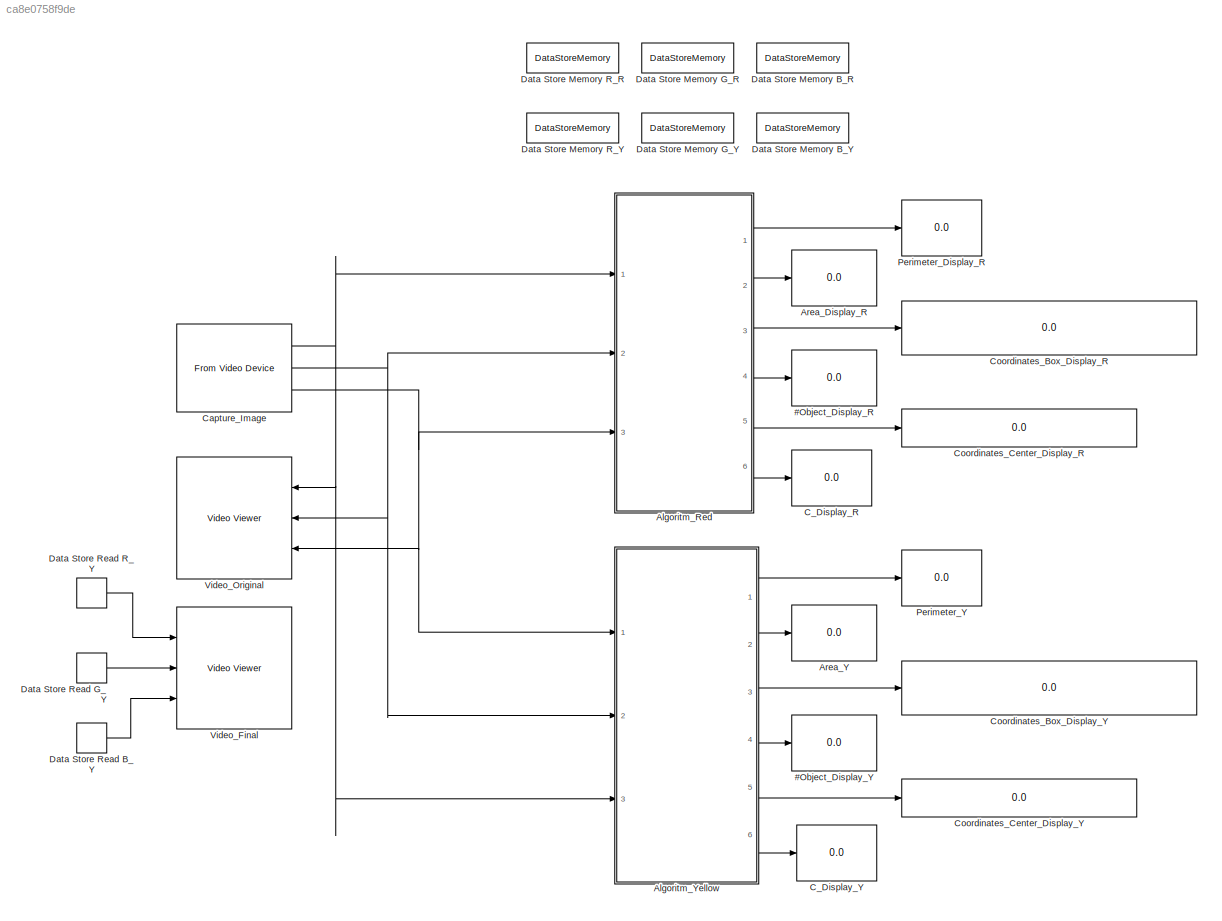
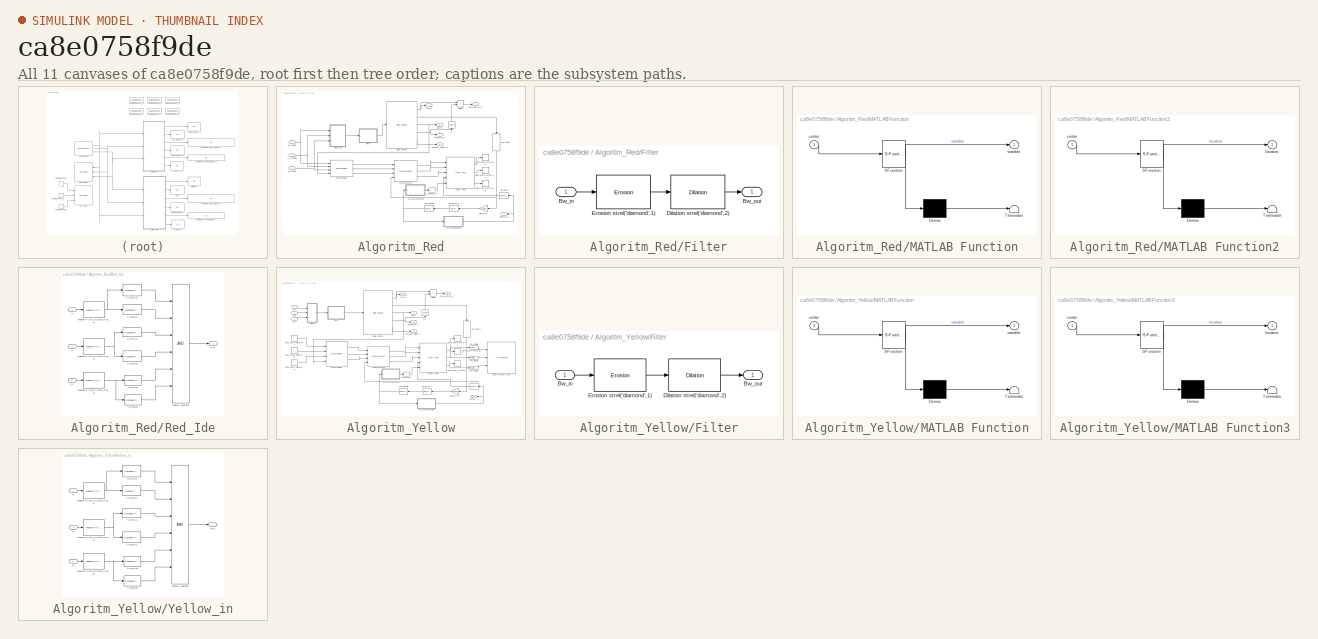
[diagram: thumbnail index - all 11 canvases of the model, root first then tree order]
MODEL slx_ca8e0758f9de
KIND model
CONFIG AbsTol = auto
CONFIG FixedStep = auto
CONFIG MaxStep = auto
CONFIG MinStep = auto
CONFIG RelTol = 1e-3
CONFIG SampleTimeConstraint = Unconstrained
CONFIG Solver = ode45
CONFIG SolverMode = SingleTasking
CONFIG SolverName = ode45
CONFIG StartTime = 0.0
CONFIG StopTime = inf
BLOCK [Display] #Object_Display_R
  Decimation = 1
  Ports = [1]
BLOCK [Display] #Object_Display_Y
  Decimation = 1
  Ports = [1]
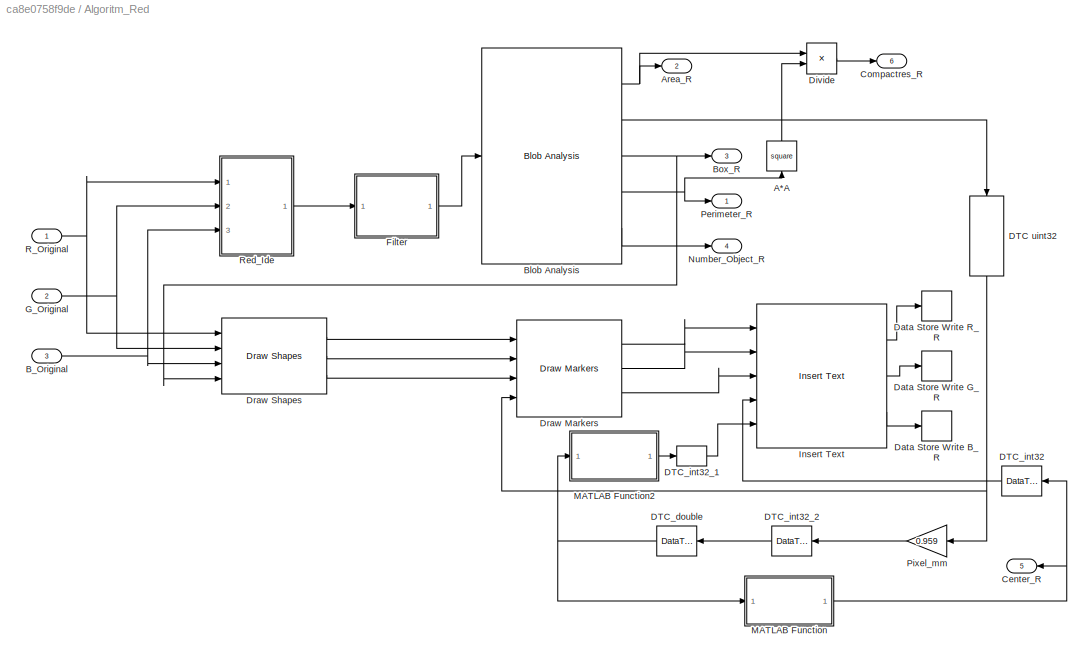
BLOCK [SubSystem] Algoritm_Red
  Ports = [3, 6]
  RequestExecContextInheritance = off
  Variant = off
BLOCK [Math] Algoritm_Red/A*A
  Operator = square
  Ports = [1, 1]
BLOCK [Outport] Algoritm_Red/Area_R
  IconDisplay = Port number
  Port = 2
BLOCK [Inport] Algoritm_Red/B_Original
  IconDisplay = Port number
  Port = 3
BLOCK [Reference] Algoritm_Red/Blob Analysis  REF=visionstatistics/Blob Analysis
  LockScale = off
  Ports = [1, 5]
  SourceBlock = visionstatistics/Blob Analysis
  SourceType = Blob Analysis
  Tag = vipblks_row_conv
  accumFracLength = 0
  accumMode = Binary point scaling
  accumWordLength = 32
  angle = off
  area = on
  bBox = on
  centroid = on
  conn = 8
  eccentricity = off
  equivDiameterSq = off
  excludeBorderBlob = on
  extent = off
  fillValues = -1
  firstCoeffFracLength = 14
  firstCoeffMode = Binary point scaling
  firstCoeffWordLength = 16
  isCount = on
  isFill = on
  isLabel = off
  isOutVarDim = off
  majorAxis = off
  maxArea = intmax('uint32')
  maxBlobs = 2
  memoryFracLength = 16
  memoryMode = Same as product output
  memoryWordLength = 32
  minArea = 700
  minorAxis = off
  outDT = double
  outputFracLength = 16
  outputMode = Binary point scaling
  outputWordLength = 32
  overflowMode = off
  perimeter = on
  prodOutputFracLength = 16
  prodOutputMode = Binary point scaling
  prodOutputWordLength = 32
  roundingMode = Floor
  secondCoeffFracLength = 16
  secondCoeffMode = Binary point scaling
  secondCoeffWordLength = 32
  useMaxArea = off
  useMinArea = on
  warnIfNumBlobsExceeded = on
BLOCK [Outport] Algoritm_Red/Box_R
  IconDisplay = Port number
  Port = 3
BLOCK [Outport] Algoritm_Red/Center_R
  IconDisplay = Port number
  Port = 5
BLOCK [Outport] Algoritm_Red/Compactres_R
  IconDisplay = Port number
  Port = 6
BLOCK [DataTypeConversion] Algoritm_Red/DTC uint32
  OutDataTypeStr = uint32
  RndMeth = Floor
  SaturateOnIntegerOverflow = off
BLOCK [DataTypeConversion] Algoritm_Red/DTC_double
  OutDataTypeStr = double
  RndMeth = Floor
  SaturateOnIntegerOverflow = off
BLOCK [DataTypeConversion] Algoritm_Red/DTC_int32
  OutDataTypeStr = int32
  RndMeth = Floor
  SaturateOnIntegerOverflow = off
BLOCK [DataTypeConversion] Algoritm_Red/DTC_int32_1
  OutDataTypeStr = int32
  RndMeth = Floor
  SaturateOnIntegerOverflow = off
BLOCK [DataTypeConversion] Algoritm_Red/DTC_int32_2
  OutDataTypeStr = int32
  RndMeth = Floor
  SaturateOnIntegerOverflow = off
BLOCK [DataStoreWrite] Algoritm_Red/Data Store Write B_R
  DataStoreName = B_R
  Ports = [1]
BLOCK [DataStoreWrite] Algoritm_Red/Data Store Write G_R
  DataStoreName = G_R
  Ports = [1]
BLOCK [DataStoreWrite] Algoritm_Red/Data Store Write R_R
  DataStoreName = R_R
  Ports = [1]
BLOCK [Product] Algoritm_Red/Divide
  InputSameDT = off
  Inputs = /*
  OutDataTypeStr = Inherit: Inherit via internal rule
  Ports = [2, 1]
  RndMeth = Floor
  SaturateOnIntegerOverflow = off
BLOCK [Reference] Algoritm_Red/Draw Markers  REF=visiontextngfix/Draw Markers
  LockScale = off
  Ports = [4, 3]
  SourceBlock = visiontextngfix/Draw Markers
  SourceType = Draw Markers
  accumFracLength = 14
  accumMode = Same as product output
  accumWordLength = 32
  antialiasing = off
  color = [0 0 1]
  display = User-specified value
  fill = off
  fillClrSource = Specify via dialog
  imagePorts = Separate color signals
  inType = Obsolete
  intensity = 200
  memoryFracLength = 15
  memoryMode = Specify word length
  memoryWordLength = 16
  opacity = 0.6
  overflowMode = off
  prodOutputFracLength = 14
  prodOutputMode = Binary point scaling
  prodOutputWordLength = 32
  roundingMode = Floor
  shape = Plus
  size = 8
  viewport = Entire image
BLOCK [Reference] Algoritm_Red/Draw Shapes  REF=visiontextngfix/Draw Shapes
  LockScale = off
  Ports = [4, 3]
  SourceBlock = visiontextngfix/Draw Shapes
  SourceType = Draw Shapes
  accumFracLength = 14
  accumMode = Same as product output
  accumWordLength = 32
  antialiasing = off
  color = [0 0 255]
  display = User-specified value
  fill = off
  fillClrSource = Specify via dialog
  imagePorts = Separate color signals
  inType = Obsolete
  intensity = 200
  lineWidth = 1
  memoryFracLength = 14
  memoryMode = Specify word length
  memoryWordLength = 16
  opacity = 0.5
  overflowMode = off
  prodOutputFracLength = 14
  prodOutputMode = Binary point scaling
  prodOutputWordLength = 32
  roundingMode = Floor
  shape = Rectangles
  viewport = Entire image
BLOCK [SubSystem] Algoritm_Red/Filter
  Ports = [1, 1]
  RequestExecContextInheritance = off
  Variant = off
BLOCK [Inport] Algoritm_Red/Filter/Bw_in
  IconDisplay = Port number
BLOCK [Outport] Algoritm_Red/Filter/Bw_out
  IconDisplay = Port number
BLOCK [Reference] Algoritm_Red/Filter/Dilation strel('diamond',2)  REF=visionmorphops/Dilation
  Ports = [1, 1]
  SourceBlock = visionmorphops/Dilation
  SourceType = Dilation
  nhoodsrc = Specify via dialog
  strel = strel('diamond',2)
BLOCK [Reference] Algoritm_Red/Filter/Erosion strel('diamond',1)  REF=visionmorphops/Erosion
  Ports = [1, 1]
  SourceBlock = visionmorphops/Erosion
  SourceType = Erosion
  nhoodsrc = Specify via dialog
  strel = strel('diamond',1)
BLOCK [Inport] Algoritm_Red/G_Original
  IconDisplay = Port number
  Port = 2
BLOCK [Reference] Algoritm_Red/Insert Text  REF=visiontextngfix/Insert Text
  Ports = [5, 3]
  SourceBlock = visiontextngfix/Insert Text
  SourceType = Insert Text
  antiAliased = on
  blockFontSize = 20
  dummyVar1 = 0
  dummyVar2 = 0
  dummyVar3 = 0
  dummyVar4 = 0
  fontFace = Calibri
  getTextColorFrom = Specify via dialog
  getTextIntensityFrom = Specify via dialog
  getTextLocFrom = Input port
  getTextOpacityFrom = Specify via dialog
  imagePorts = Separate color signals
  inputType = Obsolete
  isInputTransposed = off
  textColor = [0 0 0]
  textIntensity = 0
  textLoc = [1 1]
  textOpacity = 1
  theText = '[%i;%i]'
BLOCK [SubSystem] Algoritm_Red/MATLAB Function
  ErrorFcn = Stateflow.Translate.translate
  PermitHierarchicalResolution = ParametersOnly
  Ports = [1, 1]
  RequestExecContextInheritance = off
  SFBlockType = MATLAB Function
  TreatAsAtomicUnit = on
  Variant = off
BLOCK [Demux] Algoritm_Red/MATLAB Function/ Demux 
  Outputs = 1
  Ports = [1, 1]
BLOCK [S-Function] Algoritm_Red/MATLAB Function/ SFunction 
  EnableBusSupport = on
  FunctionName = sf_sfun
  PortCounts = [1 2]
  Ports = [1, 2]
  SFunctionDeploymentMode = off
  Tag = Stateflow S-Function Vision_2015A 1
BLOCK [Terminator] Algoritm_Red/MATLAB Function/ Terminator 
BLOCK [Inport] Algoritm_Red/MATLAB Function/center
  IconDisplay = Port number
BLOCK [Outport] Algoritm_Red/MATLAB Function/variable
  IconDisplay = Port number
BLOCK [SubSystem] Algoritm_Red/MATLAB Function2
  ErrorFcn = Stateflow.Translate.translate
  PermitHierarchicalResolution = ParametersOnly
  Ports = [1, 1]
  RequestExecContextInheritance = off
  SFBlockType = MATLAB Function
  TreatAsAtomicUnit = on
  Variant = off
BLOCK [Demux] Algoritm_Red/MATLAB Function2/ Demux 
  Outputs = 1
  Ports = [1, 1]
BLOCK [S-Function] Algoritm_Red/MATLAB Function2/ SFunction 
  EnableBusSupport = on
  FunctionName = sf_sfun
  PortCounts = [1 2]
  Ports = [1, 2]
  SFunctionDeploymentMode = off
  Tag = Stateflow S-Function Vision_2015A 3
BLOCK [Terminator] Algoritm_Red/MATLAB Function2/ Terminator 
BLOCK [Inport] Algoritm_Red/MATLAB Function2/center
  IconDisplay = Port number
BLOCK [Outport] Algoritm_Red/MATLAB Function2/location
  IconDisplay = Port number
BLOCK [Outport] Algoritm_Red/Number_Object_R
  IconDisplay = Port number
  Port = 4
BLOCK [Outport] Algoritm_Red/Perimeter_R 
  IconDisplay = Port number
BLOCK [Gain] Algoritm_Red/Pixel_mm
  Gain = 0.959
  OutDataTypeStr = Inherit: Inherit via internal rule
  ParamDataTypeStr = Inherit: Inherit via internal rule
  SaturateOnIntegerOverflow = off
BLOCK [Inport] Algoritm_Red/R_Original
  IconDisplay = Port number
BLOCK [SubSystem] Algoritm_Red/Red_Ide
  Ports = [3, 1]
  RequestExecContextInheritance = off
  Variant = off
BLOCK [Inport] Algoritm_Red/Red_Ide/B
  IconDisplay = Port number
  Port = 3
BLOCK [Outport] Algoritm_Red/Red_Ide/BW
  IconDisplay = Port number
BLOCK [Inport] Algoritm_Red/Red_Ide/G
  IconDisplay = Port number
  Port = 2
BLOCK [Logic] Algoritm_Red/Red_Ide/Logical Operator
  AllPortsSameDT = off
  Inputs = 6
  OutDataTypeStr = boolean
  Ports = [6, 1]
BLOCK [Reference] Algoritm_Red/Red_Ide/Median Filter_Circular_[5 5]_B  REF=visionanalysis/Median Filter
  LockScale = off
  Ports = [1, 1]
  SourceBlock = visionanalysis/Median Filter
  SourceType = Median Filter
  accumFracLength = 30
  accumMode = Same as input
  accumWordLength = 32
  nghbood = [5 5]
  outSize = Same as input port I
  outputFracLength = 15
  outputMode = Same as input
  outputWordLength = 16
  overflowMode = off
  padSrc = Specify via dialog
  padType = Circular
  padVal = 0
  prodOutputFracLength = 30
  prodOutputMode = Same as input
  prodOutputWordLength = 32
  roundingMode = Floor
BLOCK [Reference] Algoritm_Red/Red_Ide/Median Filter_Circular_[5 5]_G  REF=visionanalysis/Median Filter
  LockScale = off
  Ports = [1, 1]
  SourceBlock = visionanalysis/Median Filter
  SourceType = Median Filter
  accumFracLength = 30
  accumMode = Same as input
  accumWordLength = 32
  nghbood = [5 5]
  outSize = Same as input port I
  outputFracLength = 15
  outputMode = Same as input
  outputWordLength = 16
  overflowMode = off
  padSrc = Specify via dialog
  padType = Circular
  padVal = 0
  prodOutputFracLength = 30
  prodOutputMode = Same as input
  prodOutputWordLength = 32
  roundingMode = Floor
BLOCK [Reference] Algoritm_Red/Red_Ide/Median Filter_Circular_[5 5]_R  REF=visionanalysis/Median Filter
  LockScale = off
  Ports = [1, 1]
  SourceBlock = visionanalysis/Median Filter
  SourceType = Median Filter
  accumFracLength = 30
  accumMode = Same as input
  accumWordLength = 32
  nghbood = [5 5]
  outSize = Same as input port I
  outputFracLength = 15
  outputMode = Same as input
  outputWordLength = 16
  overflowMode = off
  padSrc = Specify via dialog
  padType = Circular
  padVal = 0
  prodOutputFracLength = 30
  prodOutputMode = Same as input
  prodOutputWordLength = 32
  roundingMode = Floor
BLOCK [Inport] Algoritm_Red/Red_Ide/R
  IconDisplay = Port number
BLOCK [Reference] Algoritm_Red/Red_Ide/Th_max_B  REF=simulink/Logic and Bit
Operations/Compare
To Constant
  OutDataTypeStr = boolean
  Ports = [1, 1]
  SourceBlock = simulink/Logic and Bit\nOperations/Compare\nTo Constant
  SourceType = Compare To Constant
  ZeroCross = on
  const = (150)/255
  relop = <=
BLOCK [Reference] Algoritm_Red/Red_Ide/Th_max_G  REF=simulink/Logic and Bit
Operations/Compare
To Constant
  OutDataTypeStr = boolean
  Ports = [1, 1]
  SourceBlock = simulink/Logic and Bit\nOperations/Compare\nTo Constant
  SourceType = Compare To Constant
  ZeroCross = on
  const = (150)/255
  relop = <=
BLOCK [Reference] Algoritm_Red/Red_Ide/Th_max_R   REF=simulink/Logic and Bit
Operations/Compare
To Constant
  OutDataTypeStr = boolean
  Ports = [1, 1]
  SourceBlock = simulink/Logic and Bit\nOperations/Compare\nTo Constant
  SourceType = Compare To Constant
  ZeroCross = on
  const = (225+30)/255
  relop = <=
BLOCK [Reference] Algoritm_Red/Red_Ide/Th_min_B  REF=simulink/Logic and Bit
Operations/Compare
To Constant
  OutDataTypeStr = boolean
  Ports = [1, 1]
  SourceBlock = simulink/Logic and Bit\nOperations/Compare\nTo Constant
  SourceType = Compare To Constant
  ZeroCross = on
  const = (0)/255
  relop = >=
BLOCK [Reference] Algoritm_Red/Red_Ide/Th_min_G  REF=simulink/Logic and Bit
Operations/Compare
To Constant
  OutDataTypeStr = boolean
  Ports = [1, 1]
  SourceBlock = simulink/Logic and Bit\nOperations/Compare\nTo Constant
  SourceType = Compare To Constant
  ZeroCross = on
  const = (0)/255
  relop = >=
BLOCK [Reference] Algoritm_Red/Red_Ide/Th_min_R  REF=simulink/Logic and Bit
Operations/Compare
To Constant
  OutDataTypeStr = boolean
  Ports = [1, 1]
  SourceBlock = simulink/Logic and Bit\nOperations/Compare\nTo Constant
  SourceType = Compare To Constant
  ZeroCross = on
  const = (225-40)/255
  relop = >=
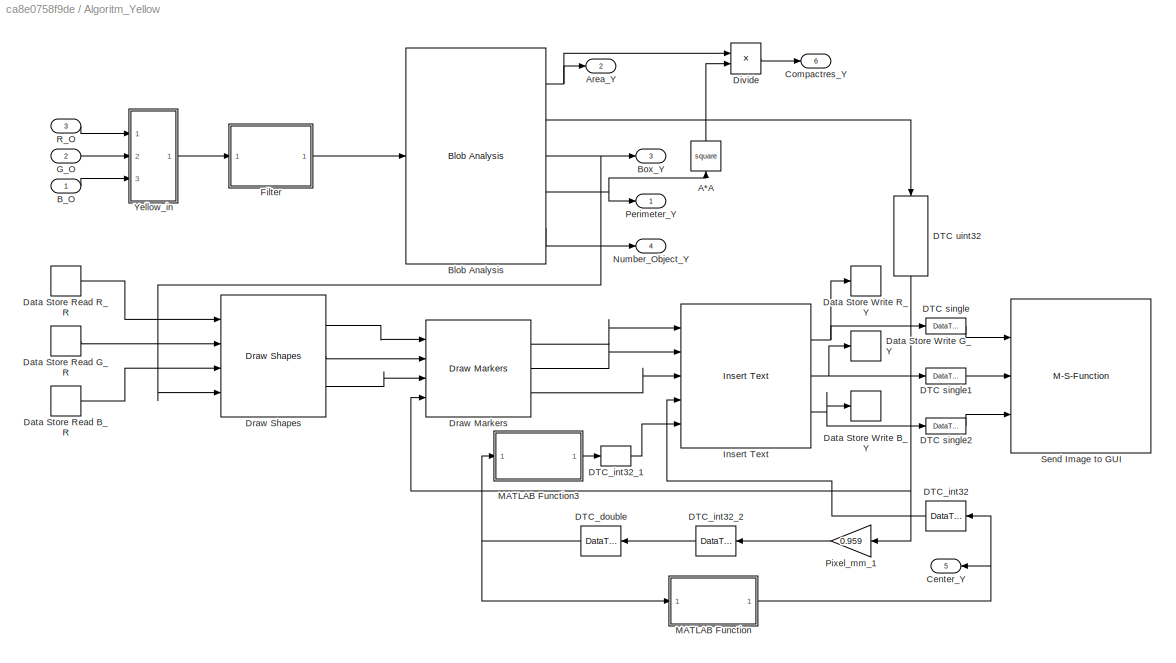
BLOCK [SubSystem] Algoritm_Yellow
  Ports = [3, 6]
  RequestExecContextInheritance = off
  Variant = off
BLOCK [Math] Algoritm_Yellow/A*A
  Operator = square
  Ports = [1, 1]
BLOCK [Outport] Algoritm_Yellow/Area_Y
  IconDisplay = Port number
  Port = 2
BLOCK [Inport] Algoritm_Yellow/B_O
  IconDisplay = Port number
BLOCK [Reference] Algoritm_Yellow/Blob Analysis  REF=visionstatistics/Blob Analysis
  LockScale = off
  Ports = [1, 5]
  SourceBlock = visionstatistics/Blob Analysis
  SourceType = Blob Analysis
  Tag = vipblks_row_conv
  accumFracLength = 0
  accumMode = Binary point scaling
  accumWordLength = 32
  angle = off
  area = on
  bBox = on
  centroid = on
  conn = 8
  eccentricity = off
  equivDiameterSq = off
  excludeBorderBlob = on
  extent = off
  fillValues = -1
  firstCoeffFracLength = 14
  firstCoeffMode = Binary point scaling
  firstCoeffWordLength = 16
  isCount = on
  isFill = on
  isLabel = off
  isOutVarDim = off
  majorAxis = off
  maxArea = intmax('uint32')
  maxBlobs = 2
  memoryFracLength = 16
  memoryMode = Same as product output
  memoryWordLength = 32
  minArea = 700
  minorAxis = off
  outDT = double
  outputFracLength = 16
  outputMode = Binary point scaling
  outputWordLength = 32
  overflowMode = off
  perimeter = on
  prodOutputFracLength = 16
  prodOutputMode = Binary point scaling
  prodOutputWordLength = 32
  roundingMode = Floor
  secondCoeffFracLength = 16
  secondCoeffMode = Binary point scaling
  secondCoeffWordLength = 32
  useMaxArea = off
  useMinArea = on
  warnIfNumBlobsExceeded = on
BLOCK [Outport] Algoritm_Yellow/Box_Y
  IconDisplay = Port number
  Port = 3
BLOCK [Outport] Algoritm_Yellow/Center_Y
  IconDisplay = Port number
  Port = 5
BLOCK [Outport] Algoritm_Yellow/Compactres_Y
  IconDisplay = Port number
  Port = 6
BLOCK [DataTypeConversion] Algoritm_Yellow/DTC single
  OutDataTypeStr = single
  RndMeth = Floor
  SaturateOnIntegerOverflow = off
BLOCK [DataTypeConversion] Algoritm_Yellow/DTC single1
  OutDataTypeStr = single
  RndMeth = Floor
  SaturateOnIntegerOverflow = off
BLOCK [DataTypeConversion] Algoritm_Yellow/DTC single2
  OutDataTypeStr = single
  RndMeth = Floor
  SaturateOnIntegerOverflow = off
BLOCK [DataTypeConversion] Algoritm_Yellow/DTC uint32
  OutDataTypeStr = uint32
  RndMeth = Floor
  SaturateOnIntegerOverflow = off
BLOCK [DataTypeConversion] Algoritm_Yellow/DTC_double
  OutDataTypeStr = double
  RndMeth = Floor
  SaturateOnIntegerOverflow = off
BLOCK [DataTypeConversion] Algoritm_Yellow/DTC_int32
  OutDataTypeStr = int32
  RndMeth = Floor
  SaturateOnIntegerOverflow = off
BLOCK [DataTypeConversion] Algoritm_Yellow/DTC_int32_1
  OutDataTypeStr = int32
  RndMeth = Floor
  SaturateOnIntegerOverflow = off
BLOCK [DataTypeConversion] Algoritm_Yellow/DTC_int32_2
  OutDataTypeStr = int32
  RndMeth = Floor
  SaturateOnIntegerOverflow = off
BLOCK [DataStoreRead] Algoritm_Yellow/Data Store Read B_R 
  DataStoreName = B_R
  Ports = [0, 1]
BLOCK [DataStoreRead] Algoritm_Yellow/Data Store Read G_R
  DataStoreName = G_R
  Ports = [0, 1]
BLOCK [DataStoreRead] Algoritm_Yellow/Data Store Read R_R
  DataStoreName = R_R
  Ports = [0, 1]
BLOCK [DataStoreWrite] Algoritm_Yellow/Data Store Write B_Y
  DataStoreName = B_Y
  Ports = [1]
BLOCK [DataStoreWrite] Algoritm_Yellow/Data Store Write G_Y
  DataStoreName = G_Y
  Ports = [1]
BLOCK [DataStoreWrite] Algoritm_Yellow/Data Store Write R_Y
  DataStoreName = R_Y
  Ports = [1]
BLOCK [Product] Algoritm_Yellow/Divide
  InputSameDT = off
  Inputs = /*
  OutDataTypeStr = Inherit: Inherit via internal rule
  Ports = [2, 1]
  RndMeth = Floor
  SaturateOnIntegerOverflow = off
BLOCK [Reference] Algoritm_Yellow/Draw Markers  REF=visiontextngfix/Draw Markers
  LockScale = off
  Ports = [4, 3]
  SourceBlock = visiontextngfix/Draw Markers
  SourceType = Draw Markers
  accumFracLength = 14
  accumMode = Same as product output
  accumWordLength = 32
  antialiasing = off
  color = [0 0 1]
  display = User-specified value
  fill = off
  fillClrSource = Specify via dialog
  imagePorts = Separate color signals
  inType = Obsolete
  intensity = 200
  memoryFracLength = 15
  memoryMode = Specify word length
  memoryWordLength = 16
  opacity = 0.6
  overflowMode = off
  prodOutputFracLength = 14
  prodOutputMode = Binary point scaling
  prodOutputWordLength = 32
  roundingMode = Floor
  shape = Plus
  size = 8
  viewport = Entire image
BLOCK [Reference] Algoritm_Yellow/Draw Shapes  REF=visiontextngfix/Draw Shapes
  LockScale = off
  Ports = [4, 3]
  SourceBlock = visiontextngfix/Draw Shapes
  SourceType = Draw Shapes
  accumFracLength = 14
  accumMode = Same as product output
  accumWordLength = 32
  antialiasing = off
  color = [0 0 255]
  display = User-specified value
  fill = off
  fillClrSource = Specify via dialog
  imagePorts = Separate color signals
  inType = Obsolete
  intensity = 200
  lineWidth = 1
  memoryFracLength = 14
  memoryMode = Specify word length
  memoryWordLength = 16
  opacity = 0.5
  overflowMode = off
  prodOutputFracLength = 14
  prodOutputMode = Binary point scaling
  prodOutputWordLength = 32
  roundingMode = Floor
  shape = Rectangles
  viewport = Entire image
BLOCK [SubSystem] Algoritm_Yellow/Filter
  Ports = [1, 1]
  RequestExecContextInheritance = off
  Variant = off
BLOCK [Inport] Algoritm_Yellow/Filter/Bw_in
  IconDisplay = Port number
BLOCK [Outport] Algoritm_Yellow/Filter/Bw_out
  IconDisplay = Port number
BLOCK [Reference] Algoritm_Yellow/Filter/Dilation strel('diamond',2)  REF=visionmorphops/Dilation
  Ports = [1, 1]
  SourceBlock = visionmorphops/Dilation
  SourceType = Dilation
  nhoodsrc = Specify via dialog
  strel = strel('diamond',2)
BLOCK [Reference] Algoritm_Yellow/Filter/Erosion strel('diamond',1)  REF=visionmorphops/Erosion
  Ports = [1, 1]
  SourceBlock = visionmorphops/Erosion
  SourceType = Erosion
  nhoodsrc = Specify via dialog
  strel = strel('diamond',1)
BLOCK [Inport] Algoritm_Yellow/G_O
  IconDisplay = Port number
  Port = 2
BLOCK [Reference] Algoritm_Yellow/Insert Text  REF=visiontextngfix/Insert Text
  Ports = [5, 3]
  SourceBlock = visiontextngfix/Insert Text
  SourceType = Insert Text
  antiAliased = on
  blockFontSize = 20
  dummyVar1 = 0
  dummyVar2 = 0
  dummyVar3 = 0
  dummyVar4 = 0
  fontFace = Calibri
  getTextColorFrom = Specify via dialog
  getTextIntensityFrom = Specify via dialog
  getTextLocFrom = Input port
  getTextOpacityFrom = Specify via dialog
  imagePorts = Separate color signals
  inputType = Obsolete
  isInputTransposed = off
  textColor = [0 0 0]
  textIntensity = 0
  textLoc = [1 1]
  textOpacity = 1
  theText = '[%i;%i]'
BLOCK [SubSystem] Algoritm_Yellow/MATLAB Function
  ErrorFcn = Stateflow.Translate.translate
  PermitHierarchicalResolution = ParametersOnly
  Ports = [1, 1]
  RequestExecContextInheritance = off
  SFBlockType = MATLAB Function
  TreatAsAtomicUnit = on
  Variant = off
BLOCK [Demux] Algoritm_Yellow/MATLAB Function/ Demux 
  Outputs = 1
  Ports = [1, 1]
BLOCK [S-Function] Algoritm_Yellow/MATLAB Function/ SFunction 
  EnableBusSupport = on
  FunctionName = sf_sfun
  PortCounts = [1 2]
  Ports = [1, 2]
  SFunctionDeploymentMode = off
  Tag = Stateflow S-Function Vision_2015A 5
BLOCK [Terminator] Algoritm_Yellow/MATLAB Function/ Terminator 
BLOCK [Inport] Algoritm_Yellow/MATLAB Function/center
  IconDisplay = Port number
BLOCK [Outport] Algoritm_Yellow/MATLAB Function/variable
  IconDisplay = Port number
BLOCK [SubSystem] Algoritm_Yellow/MATLAB Function3
  ErrorFcn = Stateflow.Translate.translate
  PermitHierarchicalResolution = ParametersOnly
  Ports = [1, 1]
  RequestExecContextInheritance = off
  SFBlockType = MATLAB Function
  TreatAsAtomicUnit = on
  Variant = off
BLOCK [Demux] Algoritm_Yellow/MATLAB Function3/ Demux 
  Outputs = 1
  Ports = [1, 1]
BLOCK [S-Function] Algoritm_Yellow/MATLAB Function3/ SFunction 
  EnableBusSupport = on
  FunctionName = sf_sfun
  PortCounts = [1 2]
  Ports = [1, 2]
  SFunctionDeploymentMode = off
  Tag = Stateflow S-Function Vision_2015A 6
BLOCK [Terminator] Algoritm_Yellow/MATLAB Function3/ Terminator 
BLOCK [Inport] Algoritm_Yellow/MATLAB Function3/center
  IconDisplay = Port number
BLOCK [Outport] Algoritm_Yellow/MATLAB Function3/location
  IconDisplay = Port number
BLOCK [Outport] Algoritm_Yellow/Number_Object_Y
  IconDisplay = Port number
  Port = 4
BLOCK [Outport] Algoritm_Yellow/Perimeter_Y 
  IconDisplay = Port number
BLOCK [Gain] Algoritm_Yellow/Pixel_mm_1
  Gain = 0.959
  OutDataTypeStr = Inherit: Inherit via internal rule
  ParamDataTypeStr = Inherit: Inherit via internal rule
  SaturateOnIntegerOverflow = off
BLOCK [Inport] Algoritm_Yellow/R_O
  IconDisplay = Port number
  Port = 3
BLOCK [M-S-Function] Algoritm_Yellow/Send Image to GUI
  FunctionName = act_ima_auto
  Ports = [3]
BLOCK [SubSystem] Algoritm_Yellow/Yellow_in
  Ports = [3, 1]
  RequestExecContextInheritance = off
  Variant = off
BLOCK [Inport] Algoritm_Yellow/Yellow_in/B
  IconDisplay = Port number
  Port = 3
BLOCK [Outport] Algoritm_Yellow/Yellow_in/BW
  IconDisplay = Port number
BLOCK [Inport] Algoritm_Yellow/Yellow_in/G
  IconDisplay = Port number
  Port = 2
BLOCK [Logic] Algoritm_Yellow/Yellow_in/Logical Operator
  AllPortsSameDT = off
  Inputs = 6
  OutDataTypeStr = boolean
  Ports = [6, 1]
BLOCK [Reference] Algoritm_Yellow/Yellow_in/Median Filter_Circular_[5 5]_B  REF=visionanalysis/Median Filter
  LockScale = off
  Ports = [1, 1]
  SourceBlock = visionanalysis/Median Filter
  SourceType = Median Filter
  accumFracLength = 30
  accumMode = Same as input
  accumWordLength = 32
  nghbood = [5 5]
  outSize = Same as input port I
  outputFracLength = 15
  outputMode = Same as input
  outputWordLength = 16
  overflowMode = off
  padSrc = Specify via dialog
  padType = Circular
  padVal = 0
  prodOutputFracLength = 30
  prodOutputMode = Same as input
  prodOutputWordLength = 32
  roundingMode = Floor
BLOCK [Reference] Algoritm_Yellow/Yellow_in/Median Filter_Circular_[5 5]_G  REF=visionanalysis/Median Filter
  LockScale = off
  Ports = [1, 1]
  SourceBlock = visionanalysis/Median Filter
  SourceType = Median Filter
  accumFracLength = 30
  accumMode = Same as input
  accumWordLength = 32
  nghbood = [5 5]
  outSize = Same as input port I
  outputFracLength = 15
  outputMode = Same as input
  outputWordLength = 16
  overflowMode = off
  padSrc = Specify via dialog
  padType = Circular
  padVal = 0
  prodOutputFracLength = 30
  prodOutputMode = Same as input
  prodOutputWordLength = 32
  roundingMode = Floor
BLOCK [Reference] Algoritm_Yellow/Yellow_in/Median Filter_Circular_[5 5]_R  REF=visionanalysis/Median Filter
  LockScale = off
  Ports = [1, 1]
  SourceBlock = visionanalysis/Median Filter
  SourceType = Median Filter
  accumFracLength = 30
  accumMode = Same as input
  accumWordLength = 32
  nghbood = [5 5]
  outSize = Same as input port I
  outputFracLength = 15
  outputMode = Same as input
  outputWordLength = 16
  overflowMode = off
  padSrc = Specify via dialog
  padType = Circular
  padVal = 0
  prodOutputFracLength = 30
  prodOutputMode = Same as input
  prodOutputWordLength = 32
  roundingMode = Floor
BLOCK [Inport] Algoritm_Yellow/Yellow_in/R
  IconDisplay = Port number
BLOCK [Reference] Algoritm_Yellow/Yellow_in/Th_max_B  REF=simulink/Logic and Bit
Operations/Compare
To Constant
  OutDataTypeStr = boolean
  Ports = [1, 1]
  SourceBlock = simulink/Logic and Bit\nOperations/Compare\nTo Constant
  SourceType = Compare To Constant
  ZeroCross = on
  const = (200)/255
  relop = <=
BLOCK [Reference] Algoritm_Yellow/Yellow_in/Th_max_G  REF=simulink/Logic and Bit
Operations/Compare
To Constant
  OutDataTypeStr = boolean
  Ports = [1, 1]
  SourceBlock = simulink/Logic and Bit\nOperations/Compare\nTo Constant
  SourceType = Compare To Constant
  ZeroCross = on
  const = (225+30)/255
  relop = <=
BLOCK [Reference] Algoritm_Yellow/Yellow_in/Th_max_R  REF=simulink/Logic and Bit
Operations/Compare
To Constant
  OutDataTypeStr = boolean
  Ports = [1, 1]
  SourceBlock = simulink/Logic and Bit\nOperations/Compare\nTo Constant
  SourceType = Compare To Constant
  ZeroCross = on
  const = (225+30)/255
  relop = <=
BLOCK [Reference] Algoritm_Yellow/Yellow_in/Th_min_B  REF=simulink/Logic and Bit
Operations/Compare
To Constant
  OutDataTypeStr = boolean
  Ports = [1, 1]
  SourceBlock = simulink/Logic and Bit\nOperations/Compare\nTo Constant
  SourceType = Compare To Constant
  ZeroCross = on
  const = (0)/255
  relop = >=
BLOCK [Reference] Algoritm_Yellow/Yellow_in/Th_min_G   REF=simulink/Logic and Bit
Operations/Compare
To Constant
  OutDataTypeStr = boolean
  Ports = [1, 1]
  SourceBlock = simulink/Logic and Bit\nOperations/Compare\nTo Constant
  SourceType = Compare To Constant
  ZeroCross = on
  const = (200)/255
  relop = >=
BLOCK [Reference] Algoritm_Yellow/Yellow_in/Th_min_R   REF=simulink/Logic and Bit
Operations/Compare
To Constant
  OutDataTypeStr = boolean
  Ports = [1, 1]
  SourceBlock = simulink/Logic and Bit\nOperations/Compare\nTo Constant
  SourceType = Compare To Constant
  ZeroCross = on
  const = (200)/255
  relop = >=
BLOCK [Display] Area_Display_R
  Decimation = 1
  Ports = [1]
BLOCK [Display] Area_Y
  Decimation = 1
  Ports = [1]
BLOCK [Display] C_Display_R
  Decimation = 1
  Ports = [1]
BLOCK [Display] C_Display_Y 
  Decimation = 1
  Ports = [1]
BLOCK [Reference] Capture_Image  REF=imaqlib/From Video Device
  BayerSensorAlignment = grbg
  BlockHandle = 645.0004
  CanDoHWTrigger = no
  DataType = single
  DevXMLPath = <path>
  Device = winvideo 1 (Logitech HD Webcam C525)
  DeviceMenu = (none)
  EnableHWTrigger = off
  EngLibPath = C:\Program Files\MATLAB\R2017a\toolbox\imaq\imaqblks\imaqmex\win64
  EngXMLPath = C:\Program Files\MATLAB\R2017a\toolbox\imaq\imaq\private
  ObjConstructor = videoinput('winvideo', 1)
  OutputPortsMode = Separate color signals
  Ports = [0, 3]
  ROIColumn = 115
  ROIHeight = 146
  ROIPosition = [184 115 146 417]
  ROIRow = 184
  ROIWidth = 417
  ReturnedColorSpace = rgb
  SampleTime = 1/10
  SourceBlock = imaqlib/From Video Device
  SourceType = From Video Device
  TriggerConfiguration = none/none
  UserDataPersistent = on
  VideoFormat = RGB24_640x480
  VideoFormatMenu = (none)
  VideoSource = input1
BLOCK [Display] Coordinates_Box_Display_R
  Decimation = 1
  Ports = [1]
BLOCK [Display] Coordinates_Box_Display_Y
  Decimation = 1
  Ports = [1]
BLOCK [Display] Coordinates_Center_Display_R
  Decimation = 1
  Ports = [1]
BLOCK [Display] Coordinates_Center_Display_Y
  Decimation = 1
  Ports = [1]
BLOCK [DataStoreMemory] Data Store Memory B_R
  DataStoreName = B_R
  ReadBeforeWriteMsg = warning
  ShowAdditionalParam = off
  WriteAfterReadMsg = warning
  WriteAfterWriteMsg = warning
BLOCK [DataStoreMemory] Data Store Memory B_Y
  DataStoreName = B_Y
  ReadBeforeWriteMsg = warning
  ShowAdditionalParam = off
  WriteAfterReadMsg = warning
  WriteAfterWriteMsg = warning
BLOCK [DataStoreMemory] Data Store Memory G_R
  DataStoreName = G_R
  ReadBeforeWriteMsg = warning
  ShowAdditionalParam = off
  WriteAfterReadMsg = warning
  WriteAfterWriteMsg = warning
BLOCK [DataStoreMemory] Data Store Memory G_Y
  DataStoreName = G_Y
  ReadBeforeWriteMsg = warning
  ShowAdditionalParam = off
  WriteAfterReadMsg = warning
  WriteAfterWriteMsg = warning
BLOCK [DataStoreMemory] Data Store Memory R_R
  DataStoreName = R_R
  ReadBeforeWriteMsg = warning
  ShowAdditionalParam = off
  WriteAfterReadMsg = warning
  WriteAfterWriteMsg = warning
BLOCK [DataStoreMemory] Data Store Memory R_Y
  DataStoreName = R_Y
  ReadBeforeWriteMsg = warning
  ShowAdditionalParam = off
  WriteAfterReadMsg = warning
  WriteAfterWriteMsg = warning
BLOCK [DataStoreRead] Data Store Read B_Y 
  DataStoreName = B_R
  Ports = [0, 1]
BLOCK [DataStoreRead] Data Store Read G_Y
  DataStoreName = G_Y
  Ports = [0, 1]
BLOCK [DataStoreRead] Data Store Read R_Y 
  DataStoreName = R_Y
  Ports = [0, 1]
BLOCK [Display] Perimeter_Display_R
  Decimation = 1
  Ports = [1]
BLOCK [Display] Perimeter_Y
  Decimation = 1
  Ports = [1]
BLOCK [Reference] Video_Final  REF=visionsinks/Video Viewer
  AxisZoom = on
  FigPos = [1 858 1440 758]
  OpenAtMdlStart = off
  Ports = [3]
  SourceBlock = visionsinks/Video Viewer
  SourceType = Video Viewer
  UserDataPersistent = on
  colormapValue = gray(256)
  imagePorts = separate color signals
  inputType = Obsolete7b
  maxInputVal = 255
  minInputVal = 0
  specRange = off
  trueSizedOnce = off
  useColorMap = off
BLOCK [Reference] Video_Original  REF=visionsinks/Video Viewer
  AxisZoom = on
  FigPos = [1 898 1440 798]
  OpenAtMdlStart = off
  Ports = [3]
  SourceBlock = visionsinks/Video Viewer
  SourceType = Video Viewer
  UserDataPersistent = on
  colormapValue = gray(256)
  imagePorts = separate color signals
  inputType = Obsolete7b
  maxInputVal = 255
  minInputVal = 0
  specRange = off
  trueSizedOnce = off
  useColorMap = off
LINE Algoritm_Red/A*A:1 -> Algoritm_Red/Divide:2
NET Algoritm_Red/B_Original:1 -> Algoritm_Red/Draw Shapes:3, Algoritm_Red/Red_Ide:3
NET Algoritm_Red/Blob Analysis:1 -> Algoritm_Red/Area_R:1, Algoritm_Red/Divide:1
LINE Algoritm_Red/Blob Analysis:2 -> Algoritm_Red/DTC uint32:1
NET Algoritm_Red/Blob Analysis:3 -> Algoritm_Red/Box_R:1, Algoritm_Red/Draw Shapes:4
NET Algoritm_Red/Blob Analysis:4 -> Algoritm_Red/A*A:1, Algoritm_Red/Perimeter_R :1
LINE Algoritm_Red/Blob Analysis:5 -> Algoritm_Red/Number_Object_R:1
NET Algoritm_Red/DTC uint32:1 -> Algoritm_Red/Draw Markers:4, Algoritm_Red/Pixel_mm:1
NET Algoritm_Red/DTC_double:1 -> Algoritm_Red/MATLAB Function2:1, Algoritm_Red/MATLAB Function:1
LINE Algoritm_Red/DTC_int32:1 -> Algoritm_Red/Insert Text:4
LINE Algoritm_Red/DTC_int32_1:1 -> Algoritm_Red/Insert Text:5
LINE Algoritm_Red/DTC_int32_2:1 -> Algoritm_Red/DTC_double:1
LINE Algoritm_Red/Divide:1 -> Algoritm_Red/Compactres_R:1
LINE Algoritm_Red/Draw Markers:1 -> Algoritm_Red/Insert Text:1
LINE Algoritm_Red/Draw Markers:2 -> Algoritm_Red/Insert Text:2
LINE Algoritm_Red/Draw Markers:3 -> Algoritm_Red/Insert Text:3
LINE Algoritm_Red/Draw Shapes:1 -> Algoritm_Red/Draw Markers:1
LINE Algoritm_Red/Draw Shapes:2 -> Algoritm_Red/Draw Markers:2
LINE Algoritm_Red/Draw Shapes:3 -> Algoritm_Red/Draw Markers:3
LINE Algoritm_Red/Filter/Bw_in:1 -> Algoritm_Red/Filter/Erosion strel('diamond',1):1
LINE Algoritm_Red/Filter/Dilation strel('diamond',2):1 -> Algoritm_Red/Filter/Bw_out:1
LINE Algoritm_Red/Filter/Erosion strel('diamond',1):1 -> Algoritm_Red/Filter/Dilation strel('diamond',2):1
LINE Algoritm_Red/Filter:1 -> Algoritm_Red/Blob Analysis:1
NET Algoritm_Red/G_Original:1 -> Algoritm_Red/Draw Shapes:2, Algoritm_Red/Red_Ide:2
LINE Algoritm_Red/Insert Text:1 -> Algoritm_Red/Data Store Write R_R:1
LINE Algoritm_Red/Insert Text:2 -> Algoritm_Red/Data Store Write G_R:1
LINE Algoritm_Red/Insert Text:3 -> Algoritm_Red/Data Store Write B_R:1
LINE Algoritm_Red/MATLAB Function2:1 -> Algoritm_Red/DTC_int32_1:1
NET Algoritm_Red/MATLAB Function:1 -> Algoritm_Red/Center_R:1, Algoritm_Red/DTC_int32:1
LINE Algoritm_Red/Pixel_mm:1 -> Algoritm_Red/DTC_int32_2:1
NET Algoritm_Red/R_Original:1 -> Algoritm_Red/Draw Shapes:1, Algoritm_Red/Red_Ide:1
LINE Algoritm_Red/Red_Ide/B:1 -> Algoritm_Red/Red_Ide/Median Filter_Circular_[5 5]_B:1
LINE Algoritm_Red/Red_Ide/G:1 -> Algoritm_Red/Red_Ide/Median Filter_Circular_[5 5]_G:1
LINE Algoritm_Red/Red_Ide/Logical Operator:1 -> Algoritm_Red/Red_Ide/BW:1
NET Algoritm_Red/Red_Ide/Median Filter_Circular_[5 5]_B:1 -> Algoritm_Red/Red_Ide/Th_max_B:1, Algoritm_Red/Red_Ide/Th_min_B:1
NET Algoritm_Red/Red_Ide/Median Filter_Circular_[5 5]_G:1 -> Algoritm_Red/Red_Ide/Th_max_G:1, Algoritm_Red/Red_Ide/Th_min_G:1
NET Algoritm_Red/Red_Ide/Median Filter_Circular_[5 5]_R:1 -> Algoritm_Red/Red_Ide/Th_max_R :1, Algoritm_Red/Red_Ide/Th_min_R:1
LINE Algoritm_Red/Red_Ide/R:1 -> Algoritm_Red/Red_Ide/Median Filter_Circular_[5 5]_R:1
LINE Algoritm_Red/Red_Ide/Th_max_B:1 -> Algoritm_Red/Red_Ide/Logical Operator:6
LINE Algoritm_Red/Red_Ide/Th_max_G:1 -> Algoritm_Red/Red_Ide/Logical Operator:4
LINE Algoritm_Red/Red_Ide/Th_max_R :1 -> Algoritm_Red/Red_Ide/Logical Operator:2
LINE Algoritm_Red/Red_Ide/Th_min_B:1 -> Algoritm_Red/Red_Ide/Logical Operator:5
LINE Algoritm_Red/Red_Ide/Th_min_G:1 -> Algoritm_Red/Red_Ide/Logical Operator:3
LINE Algoritm_Red/Red_Ide/Th_min_R:1 -> Algoritm_Red/Red_Ide/Logical Operator:1
LINE Algoritm_Red/Red_Ide:1 -> Algoritm_Red/Filter:1
LINE Algoritm_Red:1 -> Perimeter_Display_R:1
LINE Algoritm_Red:2 -> Area_Display_R:1
LINE Algoritm_Red:3 -> Coordinates_Box_Display_R:1
LINE Algoritm_Red:4 -> #Object_Display_R:1
LINE Algoritm_Red:5 -> Coordinates_Center_Display_R:1
LINE Algoritm_Red:6 -> C_Display_R:1
LINE Algoritm_Yellow/A*A:1 -> Algoritm_Yellow/Divide:2
LINE Algoritm_Yellow/B_O:1 -> Algoritm_Yellow/Yellow_in:3
NET Algoritm_Yellow/Blob Analysis:1 -> Algoritm_Yellow/Area_Y:1, Algoritm_Yellow/Divide:1
LINE Algoritm_Yellow/Blob Analysis:2 -> Algoritm_Yellow/DTC uint32:1
NET Algoritm_Yellow/Blob Analysis:3 -> Algoritm_Yellow/Box_Y:1, Algoritm_Yellow/Draw Shapes:4
NET Algoritm_Yellow/Blob Analysis:4 -> Algoritm_Yellow/A*A:1, Algoritm_Yellow/Perimeter_Y :1
LINE Algoritm_Yellow/Blob Analysis:5 -> Algoritm_Yellow/Number_Object_Y:1
LINE Algoritm_Yellow/DTC single1:1 -> Algoritm_Yellow/Send Image to GUI:2
LINE Algoritm_Yellow/DTC single2:1 -> Algoritm_Yellow/Send Image to GUI:3
LINE Algoritm_Yellow/DTC single:1 -> Algoritm_Yellow/Send Image to GUI:1
NET Algoritm_Yellow/DTC uint32:1 -> Algoritm_Yellow/Draw Markers:4, Algoritm_Yellow/Pixel_mm_1:1
NET Algoritm_Yellow/DTC_double:1 -> Algoritm_Yellow/MATLAB Function3:1, Algoritm_Yellow/MATLAB Function:1
LINE Algoritm_Yellow/DTC_int32:1 -> Algoritm_Yellow/Insert Text:4
LINE Algoritm_Yellow/DTC_int32_1:1 -> Algoritm_Yellow/Insert Text:5
LINE Algoritm_Yellow/DTC_int32_2:1 -> Algoritm_Yellow/DTC_double:1
LINE Algoritm_Yellow/Data Store Read B_R :1 -> Algoritm_Yellow/Draw Shapes:3
LINE Algoritm_Yellow/Data Store Read G_R:1 -> Algoritm_Yellow/Draw Shapes:2
LINE Algoritm_Yellow/Data Store Read R_R:1 -> Algoritm_Yellow/Draw Shapes:1
LINE Algoritm_Yellow/Divide:1 -> Algoritm_Yellow/Compactres_Y:1
LINE Algoritm_Yellow/Draw Markers:1 -> Algoritm_Yellow/Insert Text:1
LINE Algoritm_Yellow/Draw Markers:2 -> Algoritm_Yellow/Insert Text:2
LINE Algoritm_Yellow/Draw Markers:3 -> Algoritm_Yellow/Insert Text:3
LINE Algoritm_Yellow/Draw Shapes:1 -> Algoritm_Yellow/Draw Markers:1
LINE Algoritm_Yellow/Draw Shapes:2 -> Algoritm_Yellow/Draw Markers:2
LINE Algoritm_Yellow/Draw Shapes:3 -> Algoritm_Yellow/Draw Markers:3
LINE Algoritm_Yellow/Filter/Bw_in:1 -> Algoritm_Yellow/Filter/Erosion strel('diamond',1):1
LINE Algoritm_Yellow/Filter/Dilation strel('diamond',2):1 -> Algoritm_Yellow/Filter/Bw_out:1
LINE Algoritm_Yellow/Filter/Erosion strel('diamond',1):1 -> Algoritm_Yellow/Filter/Dilation strel('diamond',2):1
LINE Algoritm_Yellow/Filter:1 -> Algoritm_Yellow/Blob Analysis:1
LINE Algoritm_Yellow/G_O:1 -> Algoritm_Yellow/Yellow_in:2
NET Algoritm_Yellow/Insert Text:1 -> Algoritm_Yellow/DTC single:1, Algoritm_Yellow/Data Store Write R_Y:1
NET Algoritm_Yellow/Insert Text:2 -> Algoritm_Yellow/DTC single1:1, Algoritm_Yellow/Data Store Write G_Y:1
NET Algoritm_Yellow/Insert Text:3 -> Algoritm_Yellow/DTC single2:1, Algoritm_Yellow/Data Store Write B_Y:1
LINE Algoritm_Yellow/MATLAB Function3:1 -> Algoritm_Yellow/DTC_int32_1:1
NET Algoritm_Yellow/MATLAB Function:1 -> Algoritm_Yellow/Center_Y:1, Algoritm_Yellow/DTC_int32:1
LINE Algoritm_Yellow/Pixel_mm_1:1 -> Algoritm_Yellow/DTC_int32_2:1
LINE Algoritm_Yellow/R_O:1 -> Algoritm_Yellow/Yellow_in:1
LINE Algoritm_Yellow/Yellow_in/B:1 -> Algoritm_Yellow/Yellow_in/Median Filter_Circular_[5 5]_B:1
LINE Algoritm_Yellow/Yellow_in/G:1 -> Algoritm_Yellow/Yellow_in/Median Filter_Circular_[5 5]_G:1
LINE Algoritm_Yellow/Yellow_in/Logical Operator:1 -> Algoritm_Yellow/Yellow_in/BW:1
NET Algoritm_Yellow/Yellow_in/Median Filter_Circular_[5 5]_B:1 -> Algoritm_Yellow/Yellow_in/Th_max_B:1, Algoritm_Yellow/Yellow_in/Th_min_B:1
NET Algoritm_Yellow/Yellow_in/Median Filter_Circular_[5 5]_G:1 -> Algoritm_Yellow/Yellow_in/Th_max_G:1, Algoritm_Yellow/Yellow_in/Th_min_G :1
NET Algoritm_Yellow/Yellow_in/Median Filter_Circular_[5 5]_R:1 -> Algoritm_Yellow/Yellow_in/Th_max_R:1, Algoritm_Yellow/Yellow_in/Th_min_R :1
LINE Algoritm_Yellow/Yellow_in/R:1 -> Algoritm_Yellow/Yellow_in/Median Filter_Circular_[5 5]_R:1
LINE Algoritm_Yellow/Yellow_in/Th_max_B:1 -> Algoritm_Yellow/Yellow_in/Logical Operator:6
LINE Algoritm_Yellow/Yellow_in/Th_max_G:1 -> Algoritm_Yellow/Yellow_in/Logical Operator:4
LINE Algoritm_Yellow/Yellow_in/Th_max_R:1 -> Algoritm_Yellow/Yellow_in/Logical Operator:2
LINE Algoritm_Yellow/Yellow_in/Th_min_B:1 -> Algoritm_Yellow/Yellow_in/Logical Operator:5
LINE Algoritm_Yellow/Yellow_in/Th_min_G :1 -> Algoritm_Yellow/Yellow_in/Logical Operator:3
LINE Algoritm_Yellow/Yellow_in/Th_min_R :1 -> Algoritm_Yellow/Yellow_in/Logical Operator:1
LINE Algoritm_Yellow/Yellow_in:1 -> Algoritm_Yellow/Filter:1
LINE Algoritm_Yellow:1 -> Perimeter_Y:1
LINE Algoritm_Yellow:2 -> Area_Y:1
LINE Algoritm_Yellow:3 -> Coordinates_Box_Display_Y:1
LINE Algoritm_Yellow:4 -> #Object_Display_Y:1
LINE Algoritm_Yellow:5 -> Coordinates_Center_Display_Y:1
LINE Algoritm_Yellow:6 -> C_Display_Y :1
NET Capture_Image:1 -> Algoritm_Red:1, Algoritm_Yellow:3, Video_Original:1
NET Capture_Image:2 -> Algoritm_Red:2, Algoritm_Yellow:2, Video_Original:2
NET Capture_Image:3 -> Algoritm_Red:3, Algoritm_Yellow:1, Video_Original:3
LINE Data Store Read B_Y :1 -> Video_Final:3
LINE Data Store Read G_Y:1 -> Video_Final:2
LINE Data Store Read R_Y :1 -> Video_Final:1
note: NET lines group one-source signal fan-out (src -> all destinations, sorted); 1:1 wires keep LINE
CHART Algoritm_Red/MATLAB Function states=1 transitions=1
  STATE_LABEL 'eML_blk_kernel()'
  STATE_LABEL "SCRIPT:\nfunction variable = transpuesta(center)\n%High camara\nh_camara=700;\n%High object\nh_objeto=55;\n%Split Matrix\nc1=center(:,1); %%x\nc2=center(:,2); %%y\n%Distance center WorkSpace\nd=[200;200];\nd1=typecast(d,'double');\n%Correction x position \nc12=-c1+d1;\nx_error=(h_objeto/h_camara)*c12;\nx_objeto=c12-x_error;\n%Correction y position\n%Split vector\nc21=c2(1,:);\nc22=c2(2,:);\ny_error1=(h_objeto/h_camar...<+390ch>"
CHART Algoritm_Red/MATLAB Function2 states=1 transitions=1
  STATE_LABEL 'eML_blk_kernel()'
  STATE_LABEL "SCRIPT:\nfunction location = transpuesta(center)\n%Split Matrix\nc1=center(:,1); %%x\nc2=center(:,2);  %%y\n\ndx=[25;25];\ndy=35;\n%Convert dx and dy to double\ndx1=typecast(dx,'double');\ndy1=typecast(dy,'double');\n%Correction x\nx=c1-dx1;\n%Correction y\nc2_1=c2(1,:);\nc2_2=c2(2,:);\n\nif (c2_1>=70)\n    c2_11=c2_1-dy1;\nelse \n    c2_11=c2_1+dy1;\nend\n\nif (c2_2>=70)\n    c2_21=c2_2-dy1;\nelse \n    c2_21=c2_2+dy1;\nen...<+74ch>"
CHART Algoritm_Yellow/MATLAB Function states=1 transitions=1
  STATE_LABEL 'eML_blk_kernel()'
  STATE_LABEL "SCRIPT:\nfunction variable = transpuesta(center)\n%High camara\nh_camara=700;\n%High object\nh_objeto=55;\n%Split Matrix\nc1=center(:,1); %%x\nc2=center(:,2); %%y\n%Distance center WorkSpace\nd=[200;200];\nd1=typecast(d,'double');\n%Correction x position \nc12=-c1+d1;\nx_error=(h_objeto/h_camara)*c12;\nx_objeto=c12-x_error;\n%Correction y position\n%Split vector\nc21=c2(1,:);\nc22=c2(2,:);\ny_error1=(h_objeto/h_camar...<+390ch>"
CHART Algoritm_Yellow/MATLAB Function3 states=1 transitions=1
  STATE_LABEL 'eML_blk_kernel()'
  STATE_LABEL "SCRIPT:\nfunction location = transpuesta(center)\n%Split Matrix\nc1=center(:,1); %%x\nc2=center(:,2);  %%y\n\ndx=[25;25];\ndy=35;\n%Convert dx and dy to double\ndx1=typecast(dx,'double');\ndy1=typecast(dy,'double');\n%Correction x\nx=c1-dx1;\n%Correction y\nc2_1=c2(1,:);\nc2_2=c2(2,:);\n\nif (c2_1>=70)\n    c2_11=c2_1-dy1;\nelse \n    c2_11=c2_1+dy1;\nend\n\nif (c2_2>=70)\n    c2_21=c2_2-dy1;\nelse \n    c2_21=c2_2+dy1;\nen...<+74ch>"
note: 1 file-system path scrubbed to <path> (not preserved elsewhere — flat text is the only slx artifact)
